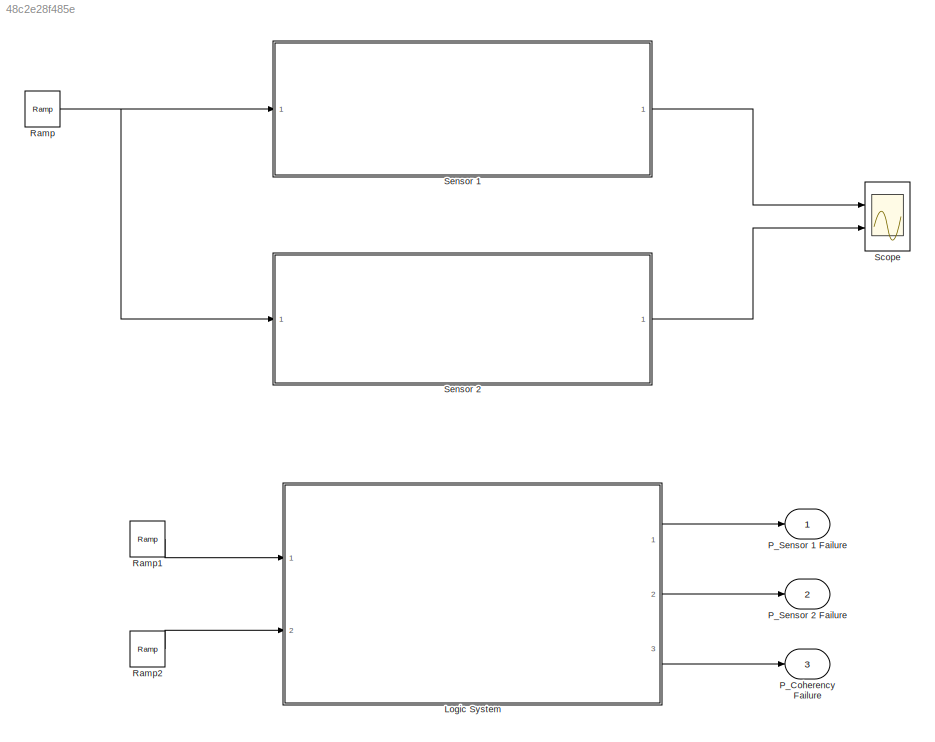
MODEL slx_48c2e28f485e
KIND model
CONFIG AbsTol = auto
CONFIG EnableMultiTasking = off
CONFIG FixedStep = auto
CONFIG MaxStep = auto
CONFIG MinStep = auto
CONFIG RelTol = 1e-3
CONFIG SampleTimeConstraint = Unconstrained
CONFIG SolverName = ode1
CONFIG StartTime = 0.0
CONFIG StopTime = 5
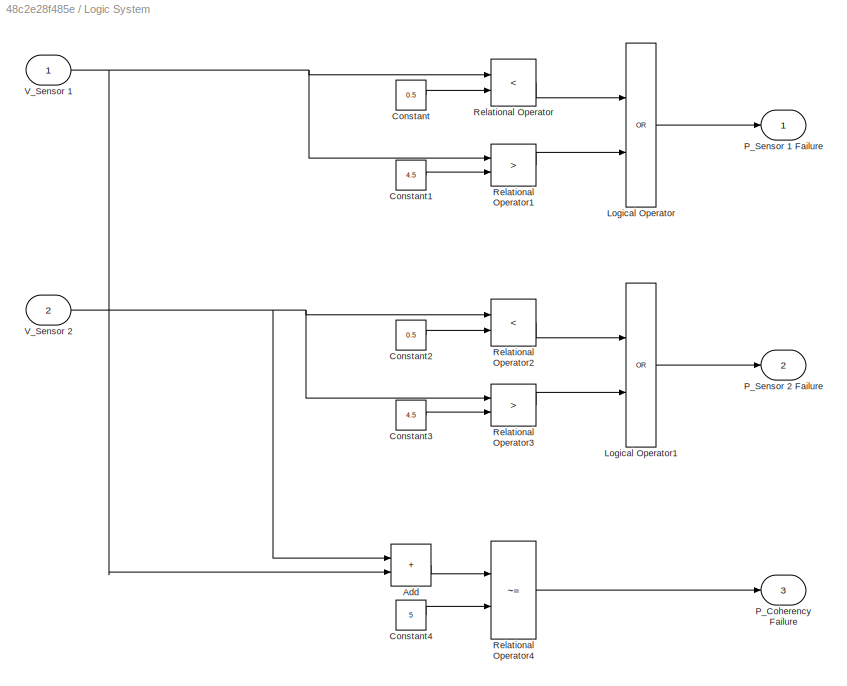
BLOCK [SubSystem] Logic System
  Ports = [2, 3]
  RTWSystemCode = Nonreusable function
  RequestExecContextInheritance = off
  TreatAsAtomicUnit = on
BLOCK [Sum] Logic System/Add
  IconShape = rectangular
  Ports = [2, 1]
BLOCK [Constant] Logic System/Constant
  Value = 0.5
BLOCK [Constant] Logic System/Constant1
  Value = 4.5
BLOCK [Constant] Logic System/Constant2
  Value = 0.5
BLOCK [Constant] Logic System/Constant3
  Value = 4.5
BLOCK [Constant] Logic System/Constant4
  Value = 5
BLOCK [Logic] Logic System/Logical Operator
  AllPortsSameDT = off
  Operator = OR
  OutDataTypeStr = boolean
  Ports = [2, 1]
BLOCK [Logic] Logic System/Logical Operator1
  AllPortsSameDT = off
  Operator = OR
  OutDataTypeStr = boolean
  Ports = [2, 1]
BLOCK [Outport] Logic System/P_Coherency Failure
  Port = 3
BLOCK [Outport] Logic System/P_Sensor 1 Failure
BLOCK [Outport] Logic System/P_Sensor 2 Failure
  Port = 2
BLOCK [RelationalOperator] Logic System/Relational Operator
  InputSameDT = off
  Operator = <
  OutDataTypeStr = boolean
  Ports = [2, 1]
  RndMeth = Simplest
BLOCK [RelationalOperator] Logic System/Relational Operator1
  InputSameDT = off
  Operator = >
  OutDataTypeStr = boolean
  Ports = [2, 1]
  RndMeth = Simplest
BLOCK [RelationalOperator] Logic System/Relational Operator2
  InputSameDT = off
  Operator = <
  OutDataTypeStr = boolean
  Ports = [2, 1]
  RndMeth = Simplest
BLOCK [RelationalOperator] Logic System/Relational Operator3
  InputSameDT = off
  Operator = >
  OutDataTypeStr = boolean
  Ports = [2, 1]
  RndMeth = Simplest
BLOCK [RelationalOperator] Logic System/Relational Operator4
  InputSameDT = off
  Operator = ~=
  OutDataTypeStr = boolean
  Ports = [2, 1]
  RndMeth = Simplest
BLOCK [Inport] Logic System/V_Sensor 1
BLOCK [Inport] Logic System/V_Sensor 2
  Port = 2
BLOCK [Outport] P_Coherency Failure
  Port = 3
BLOCK [Outport] P_Sensor 1 Failure
BLOCK [Outport] P_Sensor 2 Failure
  Port = 2
BLOCK [Reference] Ramp  REF=simulink/Sources/Ramp
  Ports = [0, 1]
  SourceBlock = simulink/Sources/Ramp
  SourceProductBaseCode = SL
  SourceType = Ramp
BLOCK [Reference] Ramp1  REF=simulink/Sources/Ramp
  Ports = [0, 1]
  SourceBlock = simulink/Sources/Ramp
  SourceProductBaseCode = SL
  SourceType = Ramp
BLOCK [Reference] Ramp2  REF=simulink/Sources/Ramp
  Ports = [0, 1]
  SourceBlock = simulink/Sources/Ramp
  SourceProductBaseCode = SL
  SourceType = Ramp
BLOCK [Scope] Scope
  Floating = off
  NumInputPorts = 2
  Ports = [2]
  ScopeSpecificationString = Simulink.scopes.TimeScopeBlockCfg('CurrentConfiguration', extmgr.ConfigurationSet(extmgr.Configuration('Core','General UI',true),extmgr.Configuration('Core','Source UI',true),extmgr.Configuration('Sources','WiredSimulink',true),extmgr.Configuration('Visuals','Time Domain',true,'SerializedDisplays',{struct('MinYLimReal','-20.00000','MaxYLimReal','25.00000','YLabelReal','','MinYLimMag','0.00000','Ma...<+1372ch>
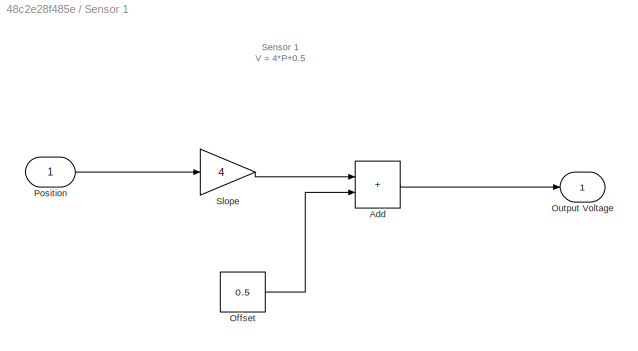
BLOCK [SubSystem] Sensor 1
  Ports = [1, 1]
  RequestExecContextInheritance = off
BLOCK [Sum] Sensor 1/Add
  IconShape = rectangular
  Ports = [2, 1]
BLOCK [Constant] Sensor 1/Offset
  Value = 0.5
BLOCK [Outport] Sensor 1/Output Voltage
BLOCK [Inport] Sensor 1/Position
BLOCK [Gain] Sensor 1/Slope
  Gain = 4
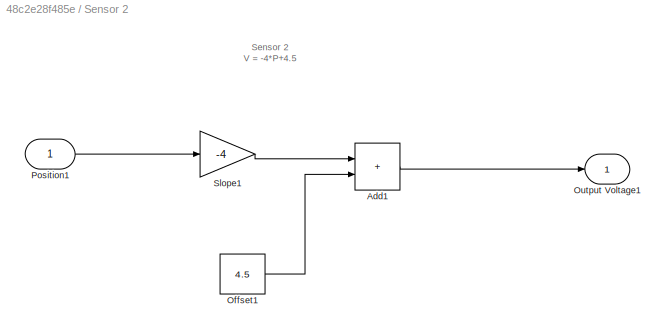
BLOCK [SubSystem] Sensor 2
  Ports = [1, 1]
  RequestExecContextInheritance = off
BLOCK [Sum] Sensor 2/Add1
  IconShape = rectangular
  Ports = [2, 1]
BLOCK [Constant] Sensor 2/Offset1
  Value = 4.5
BLOCK [Outport] Sensor 2/Output Voltage1
BLOCK [Inport] Sensor 2/Position1
BLOCK [Gain] Sensor 2/Slope1
  Gain = -4
ANNOTATION Sensor 1: Sensor 1 V = 4*P+0.5
ANNOTATION Sensor 2: Sensor 2 V = -4*P+4.5
LINE Logic System/Add:1 -> Logic System/Relational Operator4:1
LINE Logic System/Constant1:1 -> Logic System/Relational Operator1:2
LINE Logic System/Constant2:1 -> Logic System/Relational Operator2:2
LINE Logic System/Constant3:1 -> Logic System/Relational Operator3:2
LINE Logic System/Constant4:1 -> Logic System/Relational Operator4:2
LINE Logic System/Constant:1 -> Logic System/Relational Operator:2
LINE Logic System/Logical Operator1:1 -> Logic System/P_Sensor 2 Failure:1
LINE Logic System/Logical Operator:1 -> Logic System/P_Sensor 1 Failure:1
LINE Logic System/Relational Operator1:1 -> Logic System/Logical Operator:2
LINE Logic System/Relational Operator2:1 -> Logic System/Logical Operator1:1
LINE Logic System/Relational Operator3:1 -> Logic System/Logical Operator1:2
LINE Logic System/Relational Operator4:1 -> Logic System/P_Coherency Failure:1
LINE Logic System/Relational Operator:1 -> Logic System/Logical Operator:1
NET Logic System/V_Sensor 1:1 -> Logic System/Add:2, Logic System/Relational Operator1:1, Logic System/Relational Operator:1
NET Logic System/V_Sensor 2:1 -> Logic System/Add:1, Logic System/Relational Operator2:1, Logic System/Relational Operator3:1
LINE Logic System:1 -> P_Sensor 1 Failure:1
LINE Logic System:2 -> P_Sensor 2 Failure:1
LINE Logic System:3 -> P_Coherency Failure:1
LINE Ramp1:1 -> Logic System:1
LINE Ramp2:1 -> Logic System:2
NET Ramp:1 -> Sensor 1:1, Sensor 2:1
LINE Sensor 1/Add:1 -> Sensor 1/Output Voltage:1
LINE Sensor 1/Offset:1 -> Sensor 1/Add:2
LINE Sensor 1/Position:1 -> Sensor 1/Slope:1
LINE Sensor 1/Slope:1 -> Sensor 1/Add:1
LINE Sensor 1:1 -> Scope:1
LINE Sensor 2/Add1:1 -> Sensor 2/Output Voltage1:1
LINE Sensor 2/Offset1:1 -> Sensor 2/Add1:2
LINE Sensor 2/Position1:1 -> Sensor 2/Slope1:1
LINE Sensor 2/Slope1:1 -> Sensor 2/Add1:1
LINE Sensor 2:1 -> Scope:2
note: NET lines group one-source signal fan-out (src -> all destinations, sorted); 1:1 wires keep LINE
CHART Test Assessment Block states=3 transitions=10
  STATE_LABEL 'Run\n\n'
  STATE_LABEL 'step_1_1'
  STATE_LABEL 'step_1_2'
  STATE_LABEL '[t < 5\n]'
  STATE_LABEL '[~in(Run.step_1_1)]'
  STATE_LABEL '[~in(Run.step_1_2)]'
  STATE_LABEL 'step_1_1'
  STATE_LABEL 'step_1_2'
